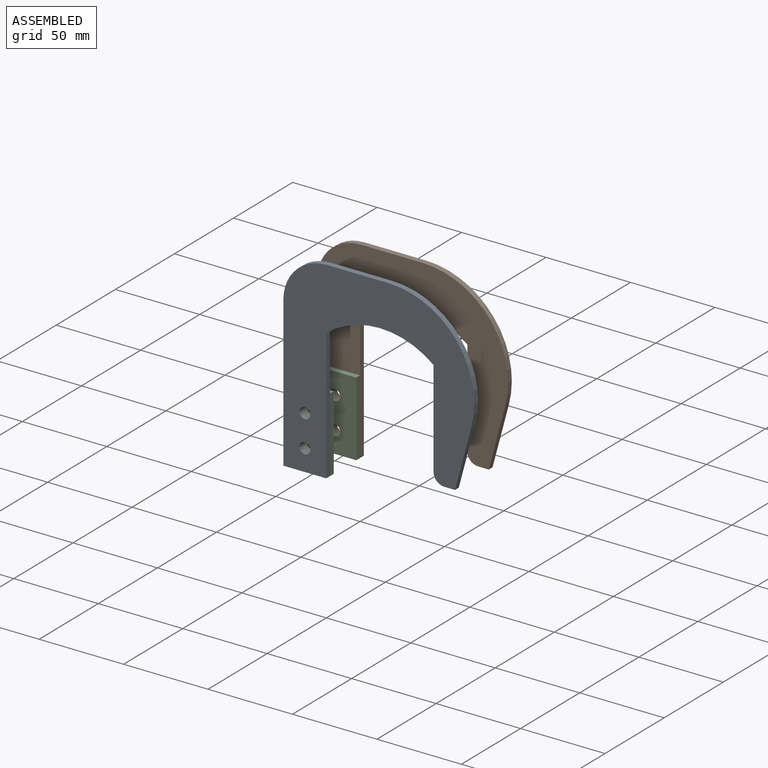
[diagram: assembled view]
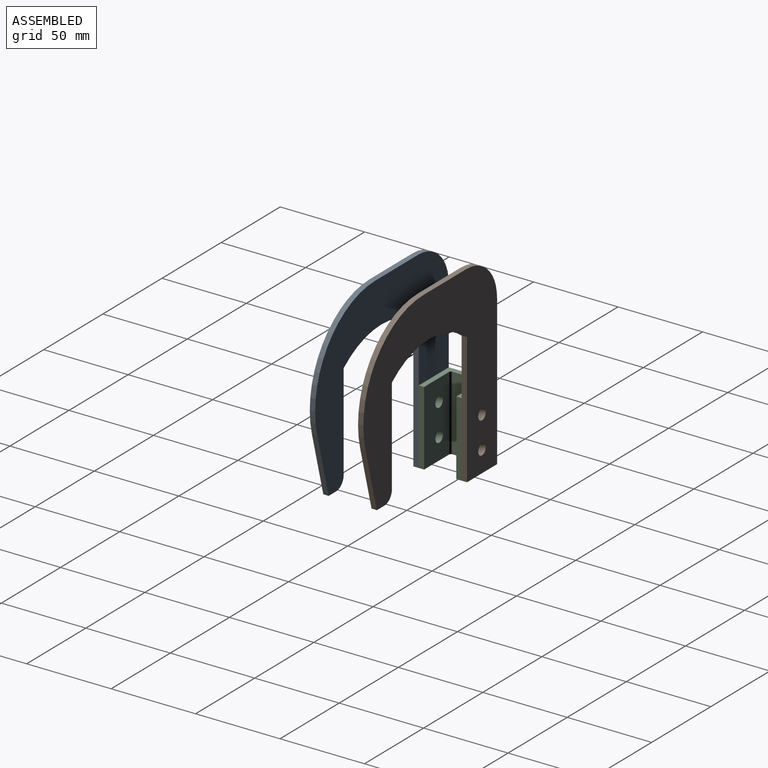
[diagram: assembled view, second angle]
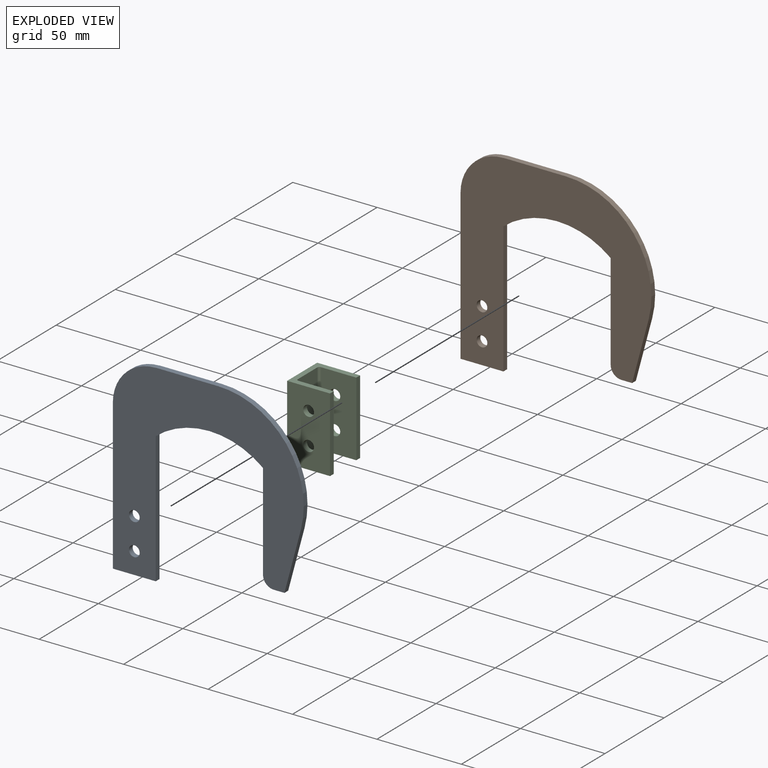
[diagram: exploded view]
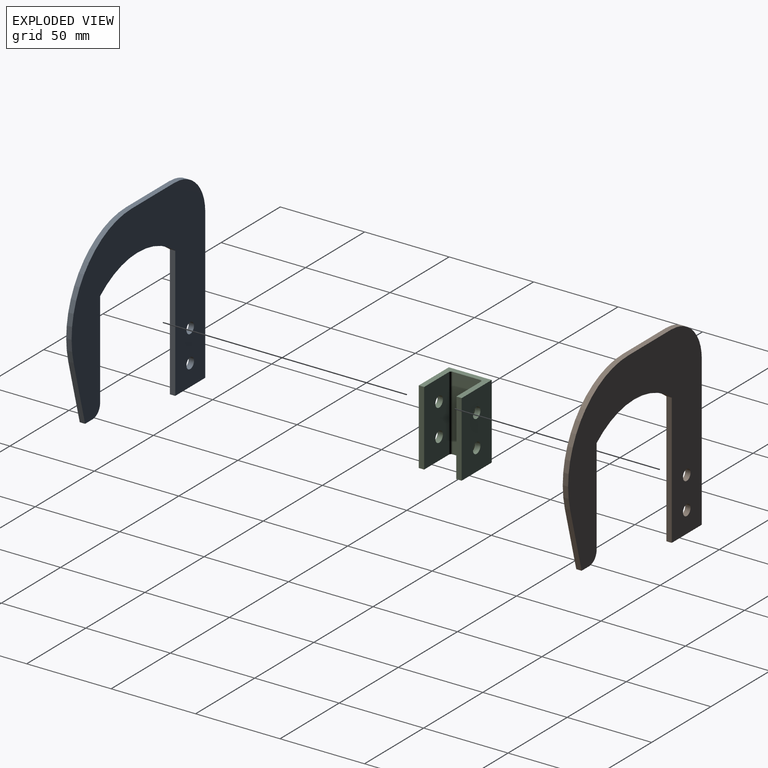
[diagram: exploded view, second angle]
ASSEMBLY  parts=3 mates=2
PART A: 16 faces, bbox 113x114.3x3.2 mm
  f0: plane 36.82x3.18mm, normal (0,1,0), area 116.9mm2, adj f1,f12,f14,f15
  f1: plane 3.18x0.08mm, normal (-1,0,0), area 0.2mm2, adj f0,f2,f14,f15
  f2: cylinder r=25.4mm len=25.4mm, axis (0,0,-1), area 126.7mm2, adj f1,f3,f14,f15
  f3: plane 88.82x3.18mm, normal (-1,0,0), area 282mm2, adj f2,f4,f14,f15
  f4: plane 25.4x3.18mm, normal (0,-1,0), area 80.6mm2, adj f3,f5,f14,f15
  f5: plane 77.68x3.18mm, normal (1,0,0), area 246.6mm2, adj f4,f6,f14,f15
  f6: cylinder r=50.53mm len=63.5mm, axis (0,0,-1), area 218mm2, adj f5,f7,f14,f15
  f7: plane 57.15x3.18mm, normal (-1,0,0), area 181.5mm2, adj f6,f8,f14,f15
  f8: cylinder r=6.35mm len=6.35mm, axis (0,0,-1), area 31.7mm2, adj f7,f9,f14,f15
  f9: plane 6.35x3.18mm, normal (0,-1,0), area 20.2mm2, adj f8,f10,f14,f15
  f10: plane 36.17x9.69mm, normal (0.97,-0.26,0), area 118.9mm2, adj f9,f12,f14,f15
  f11: cylinder r=3.17mm len=6.35mm, axis (0,0,-1), area 63.3mm2, adj f14,f15
  f12: cylinder r=50.8mm len=63.95mm, axis (0,0,-1), area 295.6mm2, adj f0,f10,f14,f15
  f13: cylinder r=3.17mm len=6.35mm, axis (0,0,-1), area 63.3mm2, adj f14,f15
  f14: plane 114.3x113.02mm, normal (0,0,1), area 6145.6mm2, adj f0,f1,f2,f3,f4,f5,f6,f7
  f15: plane 114.3x113.02mm, normal (0,0,-1), area 6145.6mm2, adj f0,f1,f2,f3,f4,f5,f6,f7
PART B: same geometry as A
PART C: 19 faces, bbox 25.4x25.4x44.2 mm
  f0: plane 44.2x25.4mm, normal (0,1,0), area 1059.2mm2, adj f1,f9,f10,f11,f15,f16
  f1: plane 44.2x25.4mm, normal (-1,0,0), area 1108.6mm2, adj f0,f2,f10,f11,f12,f13,f14
  f2: plane 44.2x25.4mm, normal (0,-1,0), area 1059.2mm2, adj f1,f3,f10,f11,f17,f18
  f3: plane 44.2x3.18mm, normal (1,0,0), area 140.3mm2, adj f2,f4,f10,f11
  f4: plane 44.2x20.92mm, normal (0,1,0), area 861.1mm2, adj f3,f5,f10,f11,f17,f18
  f5: cylinder r=1.31mm len=44.2mm, axis (0,0,-1), area 90.9mm2, adj f4,f6,f10,f11
  f6: plane 44.2x16.43mm, normal (1,0,0), area 712.2mm2, adj f5,f7,f10,f11,f12,f13,f14
  f7: cylinder r=1.31mm len=44.2mm, axis (0,0,-1), area 90.9mm2, adj f6,f8,f10,f11
  f8: plane 44.2x20.92mm, normal (0,-1,0), area 861.1mm2, adj f7,f9,f10,f11,f15,f16
  f9: plane 44.2x3.18mm, normal (1,0,0), area 140.3mm2, adj f0,f8,f10,f11
  f10: plane 25.4x25.4mm, normal (0,0,1), area 222.5mm2, adj f0,f1,f2,f3,f4,f5,f6,f7
  f11: plane 25.4x25.4mm, normal (0,0,-1), area 222.5mm2, adj f0,f1,f2,f3,f4,f5,f6,f7
  f12: cylinder r=1.22mm len=3.18mm, axis (-1,0,0), area 24.3mm2, adj f1,f6
  f13: cylinder r=1.22mm len=3.18mm, axis (-1,0,0), area 24.3mm2, adj f1,f6
  f14: cylinder r=1.22mm len=3.18mm, axis (-1,0,0), area 24.3mm2, adj f1,f6
  f15: cylinder r=3.17mm len=6.35mm, axis (0,1,0), area 63.3mm2, adj f0,f8
  f16: cylinder r=3.17mm len=6.35mm, axis (0,1,0), area 63.3mm2, adj f0,f8
  f17: cylinder r=3.17mm len=6.35mm, axis (0,1,0), area 63.3mm2, adj f2,f4
  f18: cylinder r=3.17mm len=6.35mm, axis (0,1,0), area 63.3mm2, adj f2,f4
PLACE A rot(axis=(1,0,0),90deg) t=(-118.6,-20.05,35.68)mm
PLACE B rot(axis=(1,0,0),90deg) t=(-118.6,8.52,35.68)mm
PLACE C t=(-22.35,-20.05,11.46)mm
MATE fastened B.f13 <-> C.f16  axis (0,-1,0) through (-51.48,5.35,24.16)mm
MATE fastened A.f13 <-> C.f16  axis (0,1,0) through (-51.48,-20.05,24.16)mm
